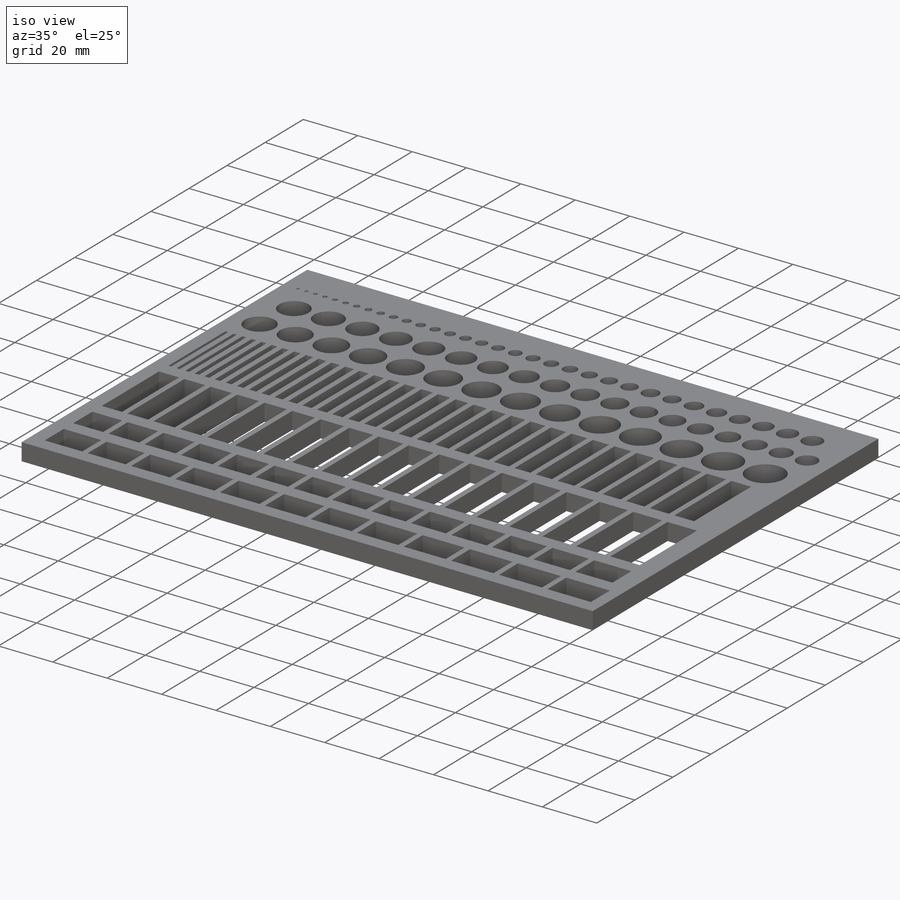
[diagram: iso view]
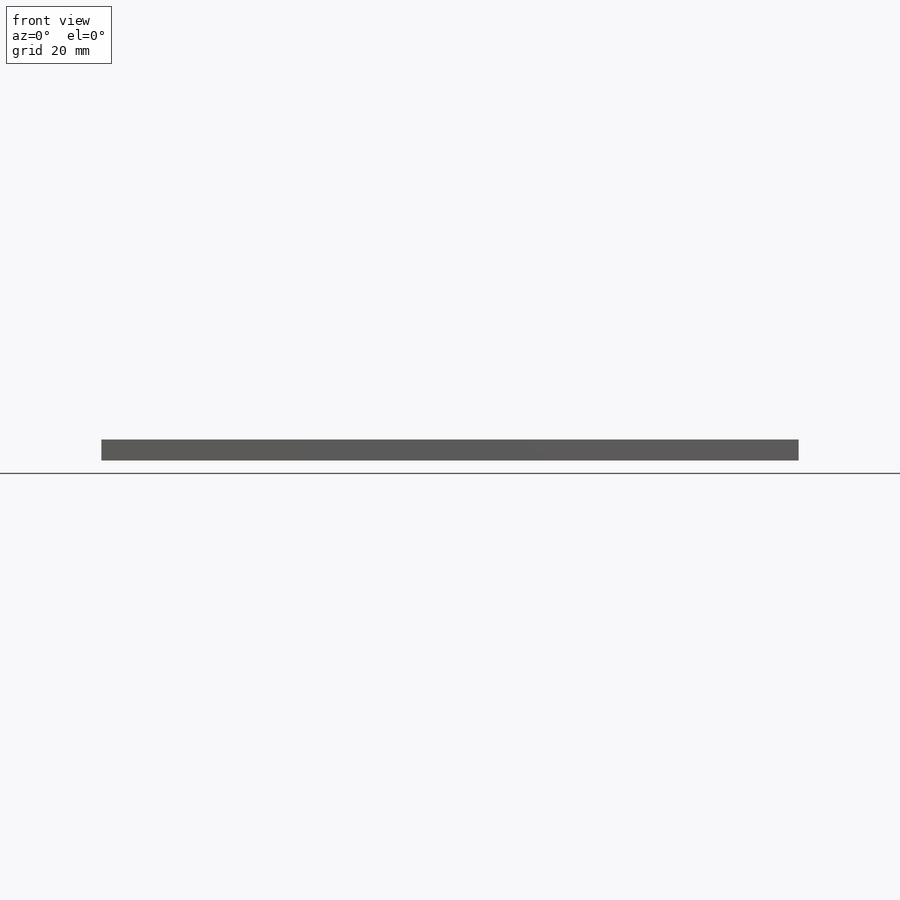
[diagram: front view]
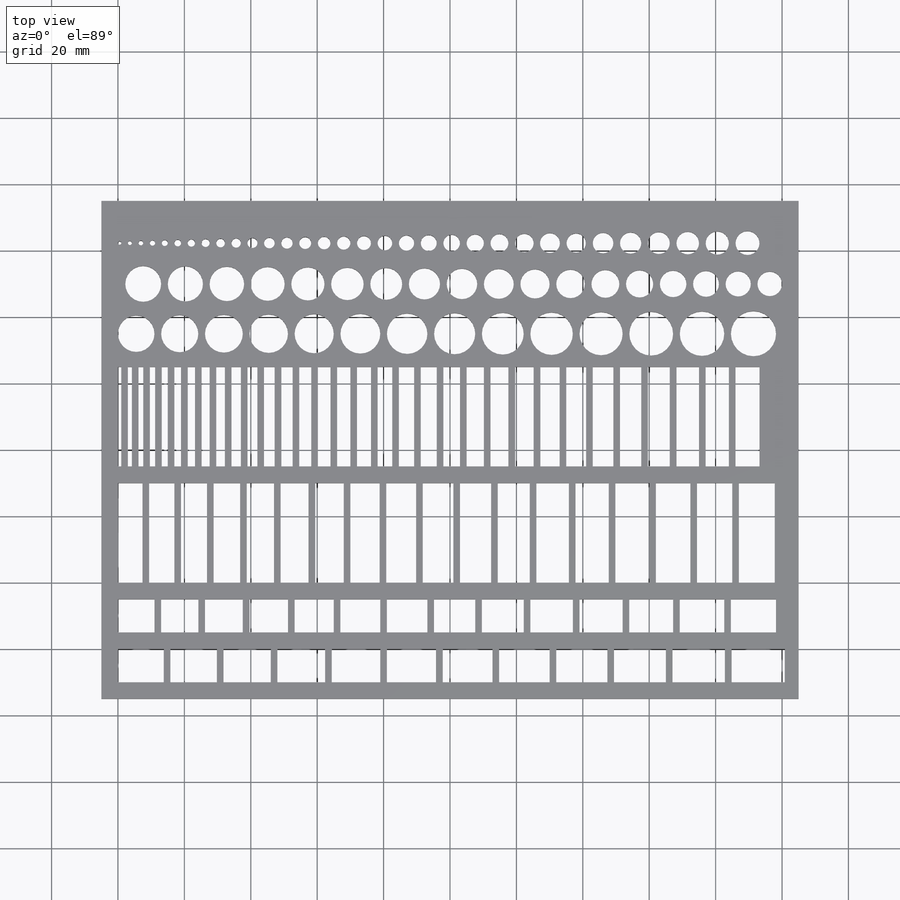
[diagram: top view]
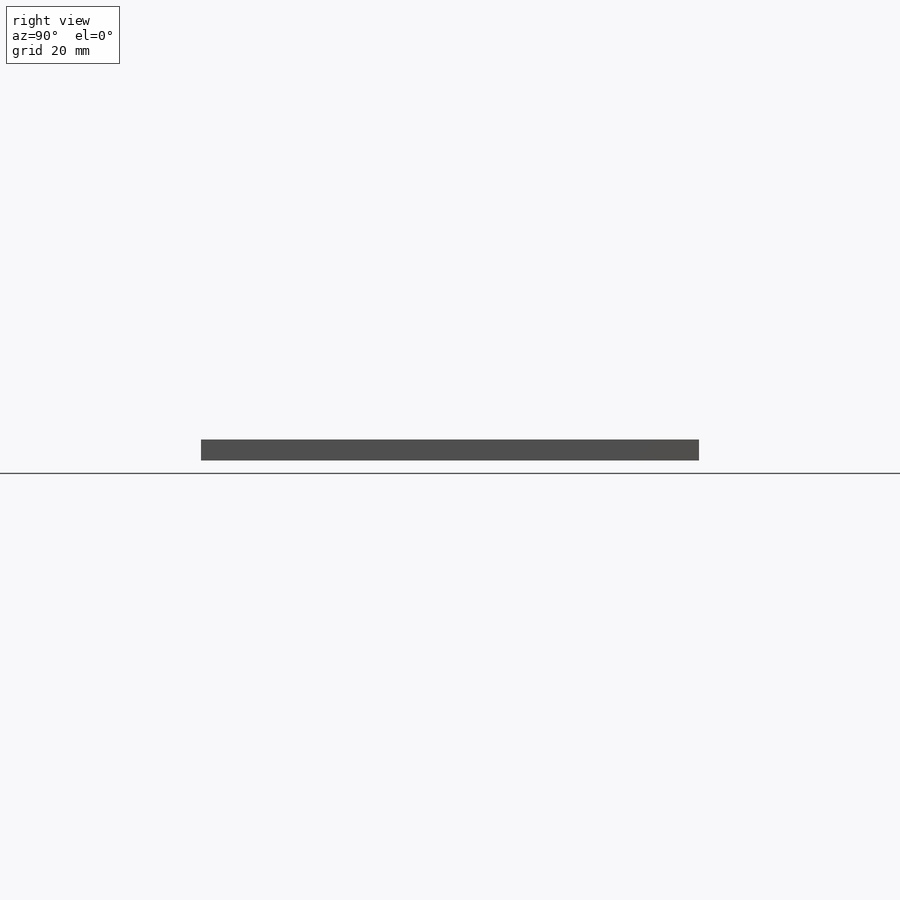
[diagram: right view]
SOLIDWORKS PART (.sldprt)
format: sldprt  version: not decoded by parser v0  size: 1,274,368 bytes
history: native  units: mm
features: sketch x8, cut_extrude x7, material x1, extrude x1 (+13 scaffold rows collapsed)
feature tree (30):
  scaffold x13  (default folders/planes/origin — collapsed)
  material  "Material <not specified>"
  sketch  "Sketch1"  dims[D1=150.0mm D2=210.0mm]
  extrude  "Boss-Extrude1"  Depth=6.35mm
  sketch  "Sketch2"  dims[c1.D2=~9.432631mm c1.D3=~8.248597mm c1.D4=~5.985931mm c1.D5=~9.685336mm c1.D6=~9.664529mm c1.D7=~19.483122mm c1.D8=~8.025955mm c1.D9=~5.115562mm c1.D10=~9.517611mm c1.D11=~12.847796mm c1.D12=~7.399565mm c1.D13=~6.833854mm c1.D14=~7.666782mm c1.D15=~6.249173mm c1.D16=~6.532654mm c1.D17=~6.470732mm c1.D18=~6.345074mm c1.D19=~5.232282mm c1.D20=~5.849869mm c1.D21=~8.883104mm c1.D22=~7.178632mm c1.D23=~11.550262mm c1.D24=~14.18353mm c1.D25=~9.36839mm c1.D26=~8.750337mm c1.D27=~13.102949mm c1.D28=~13.277134mm c1.D29=~8.931067mm c1.D30=~11.464343mm c1.D31=~10.310058mm c2.D2=~15.794559mm c2.D3=~9.107369mm c2.D4=~16.803564mm c2.D5=~19.096435mm c2.D6=~9.906798mm c3.D2=~13.024533mm c3.D3=~6.004013mm c3.D4=~64.45828mm c3.D5=~28.904487mm c3.D6=~20.839252mm c4.D3=1.2mm c4.D2=1.0mm c4.D6=1.8mm c4.D5=1.6mm c4.D4=1.4mm c4.D7=2.0mm c4.D8=2.2mm c4.D11=2.8mm c4.D10=2.6mm c4.D9=2.4mm c4.D14=3.4mm c4.D13=3.2mm c4.D12=3.0mm c4.D16=3.8mm c4.D15=3.6mm c4.D19=4.4mm c4.D18=4.2mm c4.D17=4.0mm c4.D21=4.8mm c4.D20=4.6mm c4.D24=5.4mm c4.D23=5.2mm c4.D22=5.0mm c4.D27=6.0mm c4.D26=5.8mm c4.D25=5.6mm c4.D29=6.4mm c4.D28=6.2mm c4.D32=7.0mm c4.D31=6.8mm c4.D30=6.6mm c4.D65=~7.078758mm c4.D33=7.2mm c4.D1=12.7mm c5.D32=~9.913676mm c5.D33=~21.969318mm c5.D34=~34.659466mm c5.D35=~47.666869mm c5.D36=~59.088002mm c5.D37=~69.874629mm c5.D38=~81.295762mm c5.D39=~93.668657mm c5.D40=~111.434865mm c5.D41=~122.538745mm c5.D42=~131.104595mm c5.D43=~140.622207mm c5.D44=~150.139818mm c5.D45=~158.705669mm c5.D46=~166.319758mm c5.D47=~173.933847mm c5.D48=~182.499697mm c5.D49=~192.017309mm c5.D50=~199.314144mm c5.D51=~207.879994mm c5.D52=~215.494084mm c5.D53=~224.059934mm c5.D54=~236.115575mm c5.D55=~248.805724mm c5.D56=~266.980753mm c5.D57=~281.936283mm c5.D58=~296.891814mm c5.D59=~309.581355mm c5.D60=~324.990083mm c5.D61=~340.85201mm c5.D62=~360.792717mm c5.D63=~376.201446mm c5.D64=~391.156976mm c5.D65=~402.940121mm c5.D1=12.7mm c5.D7=~8.281075mm c5.D8=~8.281075mm c5.D9=~25.820298mm c5.D10=~25.820298mm c5.D11=~44.356068mm c5.D12=~44.356068mm c5.D13=~70.066975mm c5.D14=~70.066975mm c5.D15=~104.946112mm c5.D16=~104.946112mm c6.D7=~8.281075mm c6.D8=~25.820298mm c6.D9=~44.356068mm c6.D10=~70.066975mm c6.D11=~104.946112mm c6.D1=12.7mm c7.D7=~13.05602mm c7.D8=~13.05602mm c7.D9=~30.964752mm c7.D10=~30.964752mm c7.D11=~57.339431mm c7.D12=~57.339431mm c7.D13=~82.411656mm c7.D14=~82.411656mm c7.D15=~123.438935mm c7.D16=~123.438935mm c8.D7=~13.05602mm c8.D8=~30.964752mm c8.D9=~57.339431mm c8.D10=~82.411656mm c8.D11=~123.438935mm c8.D1=12.7mm c8.D33=~5.955661mm c8.D34=~5.955661mm c8.D35=~14.57279mm c8.D36=~14.57279mm c8.D37=~20.706821mm c8.D38=~20.706821mm c8.D39=~26.700602mm c8.D40=~26.700602mm c8.D41=~39.46672mm c8.D42=~39.46672mm c8.D43=~48.403002mm c8.D44=~48.403002mm c8.D45=~57.020132mm c8.D46=~57.020132mm c8.D47=~67.552179mm c8.D48=~67.552179mm c8.D49=~79.67999mm c8.D50=~79.67999mm c8.D51=~93.403567mm c8.D52=~93.403567mm c8.D53=~104.893073mm c8.D54=~104.893073mm c8.D55=~119.893261mm c8.D56=~119.893261mm c8.D57=~129.467849mm c8.D58=~129.467849mm c8.D59=~139.999897mm c8.D60=~139.999897mm c8.D61=~150.212791mm c8.D62=~150.212791mm c8.D63=~162.978908mm c8.D64=~162.978908mm c8.D65=~173.191803mm c8.D66=~173.191803mm c8.D67=~183.72385mm c8.D68=~183.72385mm c8.D69=~192.979285mm c8.D70=~192.979285mm c8.D71=~205.65604mm c8.D72=~205.65604mm c8.D73=~213.928484mm c8.D74=~213.928484mm c8.D75=~225.41799mm c8.D76=~225.41799mm c8.D77=~232.311694mm c8.D78=~232.311694mm c8.D79=~238.286237mm c8.D80=~238.286237mm c8.D81=~248.856582mm c8.D82=~248.856582mm c8.D83=~262.184409mm c8.D84=~262.184409mm c8.D85=~273.214335mm c8.D86=~273.214335mm c8.D87=~282.405939mm c8.D88=~282.405939mm c8.D89=~291.505628mm c8.D90=~291.505628mm c8.D91=~300.881065mm c8.D92=~300.881065mm c8.D93=~310.256502mm c8.D94=~310.256502mm c9.D34=5.5mm c9.D35=8.6mm c9.D36=11.9mm c9.D37=15.4mm c9.D38=19.1mm c9.D39=23.0mm c9.D40=27.1mm c9.D41=31.4mm c9.D42=35.9mm c9.D43=40.6mm c9.D44=45.5mm c9.D45=50.6mm c9.D46=55.9mm c9.D47=61.4mm c9.D48=67.1mm c9.D49=73.0mm c9.D50=79.1mm c9.D51=85.4mm c9.D52=91.9mm c9.D53=98.6mm c9.D54=105.5mm c9.D55=112.6mm c9.D56=119.9mm c9.D57=127.4mm c9.D59=143.0mm c9.D58=135.1mm c9.D60=151.1mm c9.D61=159.4mm c9.D62=167.9mm c9.D63=176.6mm c9.D64=~320.595211mm c9.D65=194.6mm]
  sketch  "Sketch3"  dims[c1.D9=8.8mm c1.D8=8.6mm c1.D7=8.4mm c1.D6=8.2mm c1.D5=8.0mm c1.D4=7.8mm c1.D3=7.6mm c1.D2=7.4mm c1.D29=~4.644246mm c1.D28=~5.592413mm c1.D27=~4.644246mm c1.D26=~5.592413mm c1.D25=~4.644246mm c1.D24=~5.592413mm c1.D23=~4.644246mm c1.D22=~5.592413mm c1.D21=~4.644246mm c1.D20=~5.592413mm c1.D19=10.8mm c1.D18=10.6mm c1.D17=10.4mm c1.D16=10.2mm c1.D15=10.0mm c1.D14=9.8mm c1.D13=9.6mm c1.D12=9.4mm c1.D11=9.2mm c1.D10=9.0mm c1.D1=25.0mm c1.D30=~7.088394mm c1.D31=~7.088394mm c1.D32=~15.900232mm c1.D33=~15.900232mm c1.D34=~23.847632mm c1.D35=~23.847632mm c1.D36=~32.65947mm c1.D37=~32.65947mm c1.D38=~39.819088mm c1.D39=~39.819088mm c1.D40=~48.630926mm c1.D41=~48.630926mm c1.D42=~56.498133mm c1.D43=~56.498133mm c1.D44=~65.309971mm c1.D45=~65.309971mm c1.D46=~73.257371mm c1.D47=~73.257371mm c1.D48=~82.069209mm c1.D49=~82.069209mm c1.D50=~89.228827mm c1.D51=~89.228827mm c1.D52=~98.040665mm c1.D53=~98.040665mm c1.D54=~107.289557mm c1.D55=~107.289557mm c1.D56=~116.101395mm c1.D57=~116.101395mm c1.D58=~124.048795mm c1.D59=~124.048795mm c1.D60=~132.860633mm c1.D61=~132.860633mm c1.D62=~140.020252mm c1.D63=~140.020252mm c1.D64=~148.83209mm c1.D65=~148.83209mm c1.D66=~156.699297mm c1.D67=~156.699297mm c1.D68=~165.511135mm c1.D69=~165.511135mm c1.D70=~173.458535mm c1.D71=~173.458535mm c1.D72=~182.270373mm c1.D73=~182.270373mm c1.D74=~189.429991mm c1.D75=~189.429991mm c1.D76=~198.241829mm c1.D77=~198.241829mm c1.D78=~207.561164mm c1.D79=~207.561164mm c1.D80=~216.373002mm c1.D81=~216.373002mm c1.D82=~224.320402mm c1.D83=~224.320402mm c1.D84=~233.13224mm c1.D85=~233.13224mm c2.D20=8.7mm c2.D21=18.2mm c2.D22=27.9mm c2.D23=37.8mm c2.D24=47.9mm c2.D25=58.2mm c2.D26=68.7mm c2.D27=79.4mm c2.D28=90.3mm c2.D29=101.4mm c2.D30=112.7mm c2.D31=124.2mm c2.D32=135.9mm c2.D33=147.8mm c2.D34=159.9mm c2.D35=172.2mm c2.D36=184.7mm c2.D37=197.4mm c2.D48=~156.699297mm c2.D49=~165.511135mm c2.D50=~173.458535mm c2.D51=~182.270373mm c2.D52=~189.429991mm c2.D53=~198.241829mm c2.D54=~207.561164mm c2.D55=~216.373002mm c2.D56=~224.320402mm c2.D57=~233.13224mm]
  sketch  "Sketch4"  dims[c1.D21=~5.348966mm c1.D2=11.0mm c1.D4=11.4mm c1.D3=11.2mm c1.D7=12.0mm c1.D6=11.8mm c1.D5=11.6mm c1.D10=12.6mm c1.D9=12.4mm c1.D8=12.2mm c1.D12=13.0mm c1.D11=12.8mm c1.D15=~5.034321mm c1.D14=13.4mm c1.D13=13.2mm c1.D17=~4.371189mm c1.D16=~5.348966mm c1.D20=~5.034321mm c1.D19=~4.719676mm c1.D18=~4.405031mm c1.D28=~9.281914mm c2.D15=13.6mm c2.D30=~19.281914mm c2.D1=40.0mm c2.D22=~7.789217mm c2.D23=~7.789217mm c2.D24=~15.969989mm c2.D25=~15.969989mm c2.D26=~22.734858mm c2.D27=~22.734858mm c2.D28=~30.600984mm c2.D29=~30.600984mm c3.D30=~37.051208mm c3.D31=~37.051208mm c3.D32=~44.406821mm c3.D33=~44.406821mm c3.D34=~52.587593mm c3.D35=~52.587593mm c3.D36=~59.352462mm c3.D37=~59.352462mm c3.D38=~67.218589mm c3.D39=~67.218589mm c3.D40=~73.668813mm c3.D41=~73.668813mm c3.D42=~80.454047mm c3.D43=~80.454047mm c3.D44=~88.634819mm c3.D45=~88.634819mm c3.D46=~95.399688mm c3.D47=~95.399688mm c3.D48=~103.265815mm c3.D49=~103.265815mm c3.D50=~109.716039mm c3.D51=~109.716039mm c3.D52=~117.071651mm c3.D53=~117.071651mm c3.D54=~125.252423mm c3.D55=~125.252423mm c3.D56=~132.017292mm c3.D57=~132.017292mm c3.D58=~139.883419mm c3.D59=~139.883419mm c3.D60=~146.333643mm c3.D61=~146.333643mm c3.D16=10.5mm c3.D17=23.6mm c3.D18=36.9mm c3.D19=50.4mm c3.D20=64.1mm c3.D21=78.0mm c3.D22=92.1mm c3.D23=106.4mm c3.D24=120.9mm c3.D25=135.6mm c3.D26=150.5mm c3.D27=165.6mm c3.D28=180.9mm c4.D35=~103.265815mm c4.D36=~109.716039mm c4.D37=~117.071651mm c4.D38=~125.252423mm c4.D39=~132.017292mm c4.D40=~139.883419mm c4.D41=~146.333643mm c4.D29=196.4mm]
  sketch  "Sketch5"  dims[D1=30.0mm D2=2.0mm D3=45.0mm D4=5.0mm D5=1.0mm D6=1.2mm D7=1.4mm D8=1.6mm D9=1.8mm D10=2.0mm D11=2.2mm D12=2.4mm D13=2.6mm D14=2.8mm D15=3.0mm D16=3.2mm D17=3.4mm D18=3.6mm D19=3.8mm D20=4.0mm D21=4.2mm D22=4.4mm D23=4.6mm D24=4.8mm D25=5.0mm D26=5.2mm D27=5.4mm D28=5.6mm D29=5.8mm D30=6.0mm D31=6.2mm D32=6.4mm D33=6.6mm D34=6.8mm D35=7.0mm D36=7.2mm D37=50.0mm]
  sketch  "Sketch6"  dims[c1.D1=2.0mm c1.D2=30.0mm c1.D3=5.0mm c1.D4=5.0mm c1.D5=7.4mm c1.D6=7.6mm c1.D7=7.8mm c1.D8=8.0mm c1.D9=8.2mm c1.D10=8.4mm c1.D11=8.6mm c1.D12=8.8mm c1.D13=9.0mm c1.D14=9.2mm c1.D15=9.4mm c1.D16=9.6mm c1.D17=9.8mm c1.D18=10.0mm c1.D19=10.2mm c1.D20=10.4mm c1.D21=10.6mm c1.D22=10.8mm c1.D23=~9.13871mm c1.D24=~10.008921mm c1.D25=~10.357006mm c1.D26=~10.182964mm c1.D27=~10.182964mm c1.D28=~9.312752mm c1.D29=~8.964667mm c1.D30=~9.312752mm c1.D31=~9.13871mm c1.D32=~10.008921mm c2.D23=5.0mm c2.D3=30.0mm]
  sketch  "Sketch7"  dims[D1=10.0mm D2=5.0mm D3=2.0mm D4=5.0mm D5=11.0mm D6=11.2mm D7=11.4mm D8=11.6mm D9=11.8mm D10=12.0mm D11=12.2mm D12=12.4mm D13=12.6mm D14=12.8mm D15=13.0mm D16=13.2mm D17=13.4mm D18=13.6mm D19=~26.76861mm D20=~27.794878mm]
  sketch  "Sketch8"  dims[c1.D1=5.0mm c1.D2=10.0mm c1.D3=5.0mm c1.D4=~15.838748mm c1.D5=14.9826mm c2.D4=2.0mm c2.D5=13.8mm c2.D6=14.0mm c2.D7=14.2mm c2.D8=14.4mm c2.D9=14.6mm c2.D10=14.8mm c2.D11=15.0mm c2.D12=15.2mm c2.D13=15.4mm c2.D14=15.6mm c2.D15=15.8mm c2.D16=~12.867719mm c2.D17=~16.543686mm c2.D18=~18.42493mm c2.D19=~15.737439mm c2.D20=~22.430547mm c3.D16=16.0mm]
  cut_extrude  "Cut-Extrude1"  [1 undecoded]
  cut_extrude  "Cut-Extrude2"  [1 undecoded]
  cut_extrude  "Cut-Extrude3"  [1 undecoded]
  cut_extrude  "Cut-Extrude4"  [1 undecoded]
  cut_extrude  "Cut-Extrude5"  [1 undecoded]
  cut_extrude  "Cut-Extrude6"  [1 undecoded]
  cut_extrude  "Cut-Extrude7"  [1 undecoded]
decode coverage: 9 of 16 modeling features carry decoded parameters
note: ~ marks probable driven/reference dimensions
note: 7 parameter values undecoded
summary: no parameter record found for 7 features
note: suppression state not decoded; provenance and decode notes live in map.json
